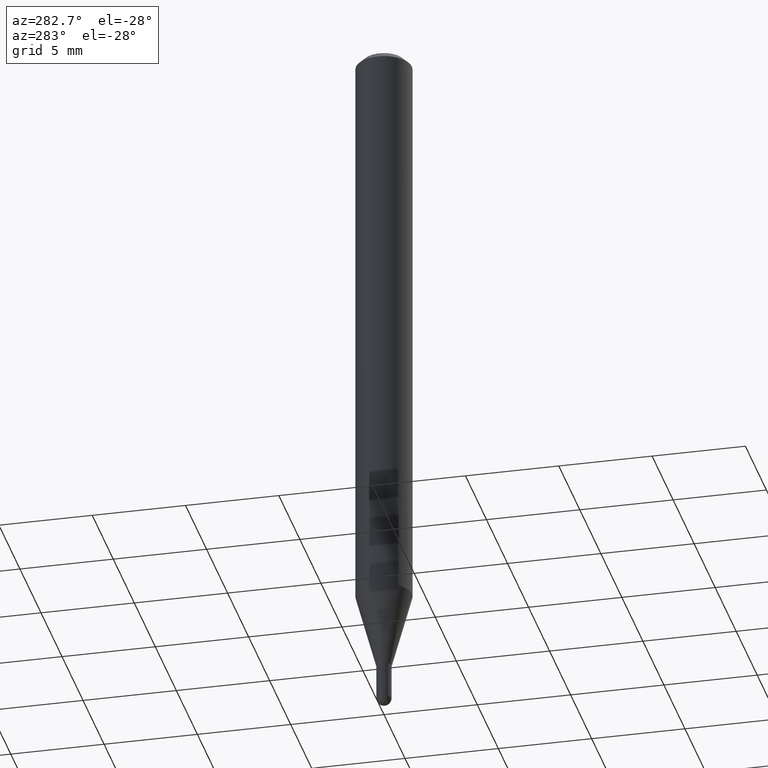
[diagram: clean part render]
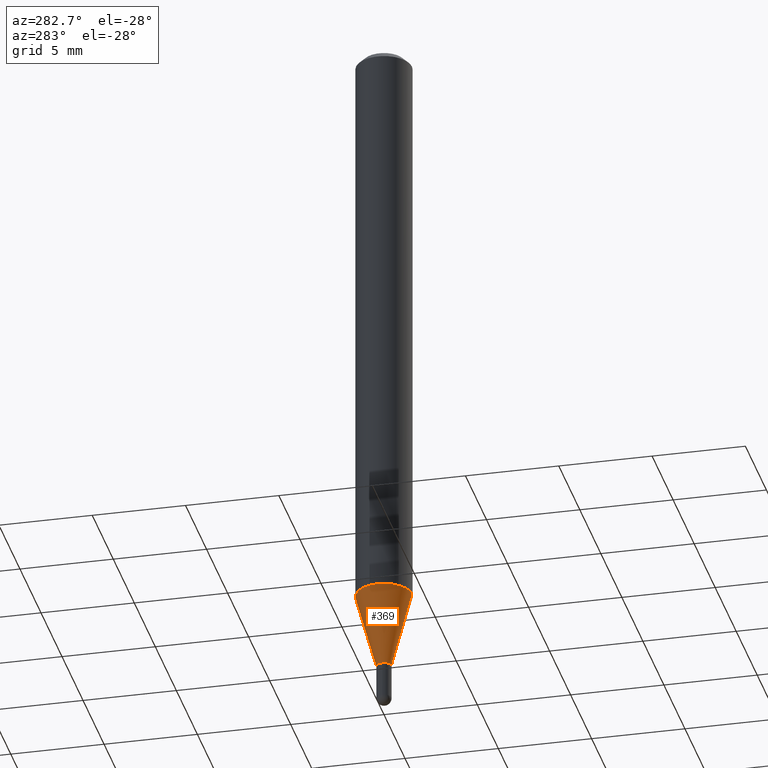
[diagram: same view with one face highlighted and labeled with its STEP entity id]
A machine part, auxiliary view. The second image highlights one B-rep face of the part: STEP entity #369.
In plain terms, the highlighted conical surface has half-angle 15 deg.
Its self-contained STEP definition (entity closure, byte-faithful):
#22 = DIRECTION ( 'NONE',  ( 1.839019923739650802E-15, 0.2588190451025320638, 0.9659258262890650926 ) ) ;
#34 = VERTEX_POINT ( 'NONE', #44 ) ;
#37 = AXIS2_PLACEMENT_3D ( 'NONE', #239, #236, #356 ) ;
#41 = ORIENTED_EDGE ( 'NONE', *, *, #248, .F. ) ;
#44 = CARTESIAN_POINT ( 'NONE',  ( -9.636488495203536860E-17, -0.01380000000000485873, -1.413100000000000023 ) ) ;
#47 = EDGE_LOOP ( 'NONE', ( #41, #311, #167, #106 ) ) ;
#62 = EDGE_CURVE ( 'NONE', #182, #34, #328, .T. ) ;
#68 = CARTESIAN_POINT ( 'NONE',  ( 4.195754854663694204E-16, 0.05904999999999564764, -1.244224700957513807 ) ) ;
#87 = AXIS2_PLACEMENT_3D ( 'NONE', #145, #453, #187 ) ;
#92 = DIRECTION ( 'NONE',  ( -2.445466752382438032E-29, 3.491484280005505170E-15, 1.000000000000000000 ) ) ;
#94 = CARTESIAN_POINT ( 'NONE',  ( -9.636488495203536860E-17, -0.01380000000000485873, -1.413100000000000023 ) ) ;
#106 = ORIENTED_EDGE ( 'NONE', *, *, #252, .F. ) ;
#132 = CARTESIAN_POINT ( 'NONE',  ( 3.042710138684580835E-29, -4.344190984187709840E-15, -1.244224700957513585 ) ) ;
#137 = AXIS2_PLACEMENT_3D ( 'NONE', #132, #92, #172 ) ;
#145 = CARTESIAN_POINT ( 'NONE',  ( 3.455689067791622925E-29, -4.933816436075779894E-15, -1.413100000000000023 ) ) ;
#167 = ORIENTED_EDGE ( 'NONE', *, *, #266, .T. ) ;
#172 = DIRECTION ( 'NONE',  ( -6.982962677686265922E-15, -1.000000000000000000, 4.626330217890369336E-15 ) ) ;
#182 = VERTEX_POINT ( 'NONE', #323 ) ;
#187 = DIRECTION ( 'NONE',  ( -6.982962677686265922E-15, -1.000000000000000000, 0.000000000000000000 ) ) ;
#236 = DIRECTION ( 'NONE',  ( -2.445466752382438032E-29, 3.491484280005505170E-15, 1.000000000000000000 ) ) ;
#239 = CARTESIAN_POINT ( 'NONE',  ( 3.455689067791622925E-29, -4.933816436075779894E-15, -1.413100000000000023 ) ) ;
#248 = EDGE_CURVE ( 'NONE', #182, #353, #446, .T. ) ;
#252 = EDGE_CURVE ( 'NONE', #353, #258, #492, .T. ) ;
#253 = CARTESIAN_POINT ( 'NONE',  ( -4.123439461173436122E-16, -0.05905000000000434207, -1.244224700957513363 ) ) ;
#258 = VERTEX_POINT ( 'NONE', #253 ) ;
#266 = EDGE_CURVE ( 'NONE', #34, #258, #489, .T. ) ;
#284 = CONICAL_SURFACE ( 'NONE', #87, 0.01379999999999992344, 0.2617993877991576790 ) ;
#297 = FACE_OUTER_BOUND ( 'NONE', #47, .T. ) ;
#311 = ORIENTED_EDGE ( 'NONE', *, *, #62, .T. ) ;
#323 = CARTESIAN_POINT ( 'NONE',  ( 2.588151915006488292E-16, 0.01379999999999498989, -1.413100000000000023 ) ) ;
#328 = CIRCLE ( 'NONE', #37, 0.01379999999999992344 ) ;
#353 = VERTEX_POINT ( 'NONE', #68 ) ;
#356 = DIRECTION ( 'NONE',  ( -6.982962677686265922E-15, -1.000000000000000000, 0.000000000000000000 ) ) ;
#360 = VECTOR ( 'NONE', #22, 39.37007874015748854 ) ;
#369 = ADVANCED_FACE ( 'NONE', ( #297 ), #284, .T. ) ;
#371 = CARTESIAN_POINT ( 'NONE',  ( 9.805489753492783129E-17, 0.01379999999999498989, -1.413100000000000023 ) ) ;
#420 = VECTOR ( 'NONE', #463, 39.37007874015748143 ) ;
#446 = LINE ( 'NONE', #371, #360 ) ;
#453 = DIRECTION ( 'NONE',  ( -2.445466752382438032E-29, 3.491484280005505170E-15, 1.000000000000000000 ) ) ;
#463 = DIRECTION ( 'NONE',  ( -1.807323732225380232E-15, -0.2588190451025253469, 0.9659258262890670910 ) ) ;
#489 = LINE ( 'NONE', #94, #420 ) ;
#492 = CIRCLE ( 'NONE', #137, 0.05904999999999999832 ) ;